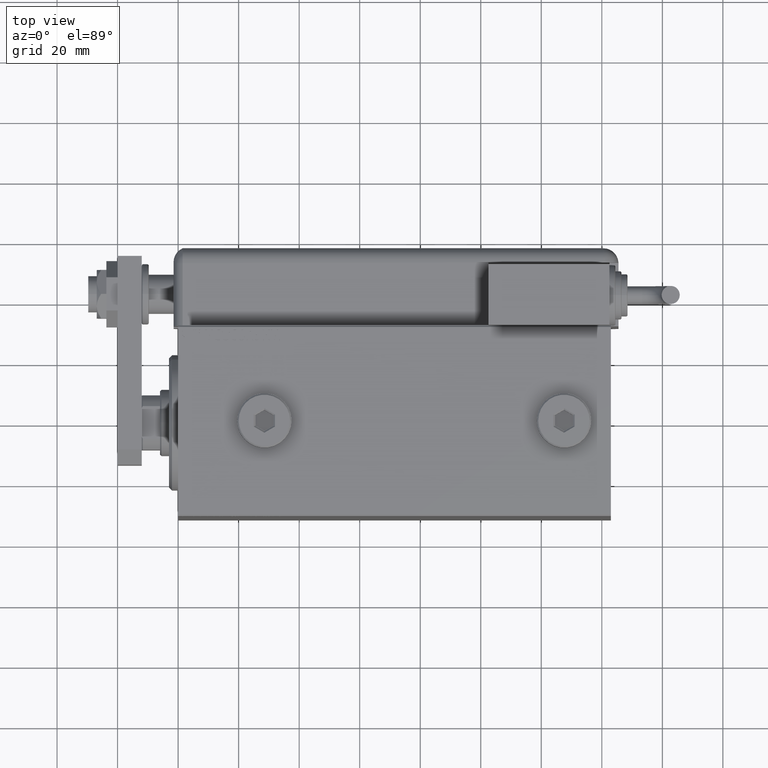
[diagram: clean part render]
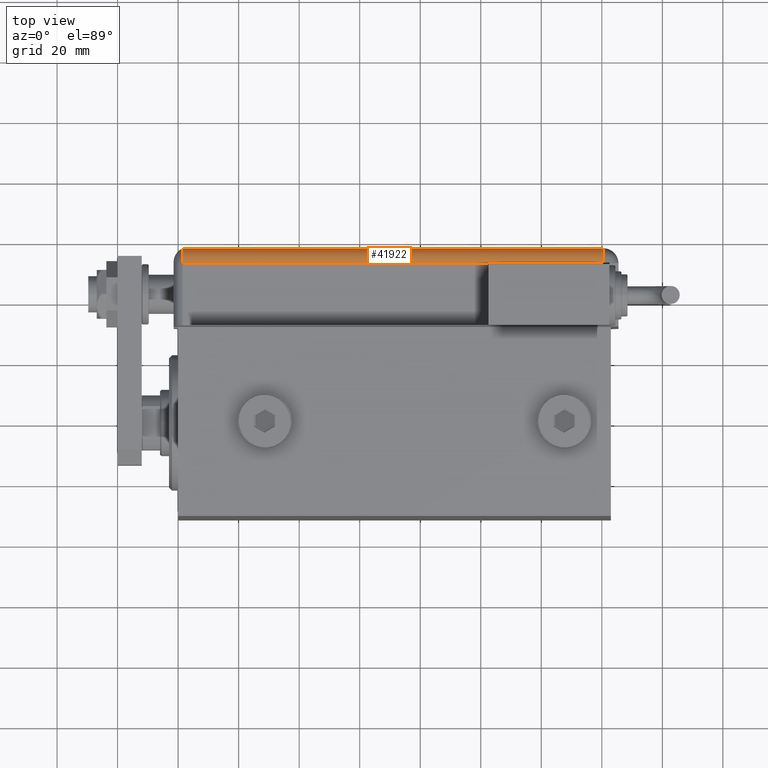
[diagram: same view with one face highlighted and labeled with its STEP entity id]
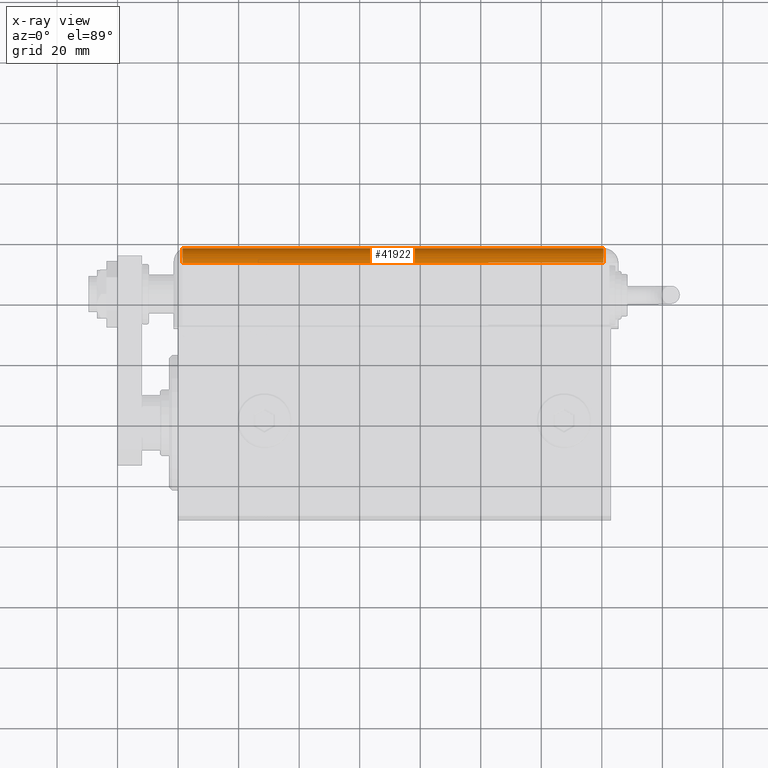
[diagram: x-ray of the same camera — body ghosted, the highlighted face saturated]
A machine part, top view. The second image highlights one B-rep face of the part: STEP entity #41922.
The next image is the same camera in x-ray: the body ghosted, the highlighted face saturated — about 0% of this face is hidden behind the body in this view.
In plain terms, the highlighted cylindrical surface (edge-blend (fillet) strip) has radius 5 mm, axis along (1, -0, -0).
Its self-contained STEP definition (entity closure, byte-faithful):
#1363 = EDGE_CURVE ( 'NONE', #40744, #38331, #10606, .T. ) ;
#1426 = CARTESIAN_POINT ( 'NONE',  ( 28.99599839871871154, 20.99999999999999289, 43.00000000000000000 ) ) ;
#1597 = ORIENTED_EDGE ( 'NONE', *, *, #43587, .F. ) ;
#2779 = AXIS2_PLACEMENT_3D ( 'NONE', #20456, #53145, #24176 ) ;
#3543 = LINE ( 'NONE', #31918, #47326 ) ;
#3907 = CARTESIAN_POINT ( 'NONE',  ( 23.99999999999999289, 25.79999999999998295, 144.0000000000000000 ) ) ;
#6172 = CARTESIAN_POINT ( 'NONE',  ( 23.99999999999999289, 20.79999999999998295, 144.0000000000000000 ) ) ;
#6709 = CARTESIAN_POINT ( 'NONE',  ( 28.99599839871871154, 21.00000000000000000, 5.000000000000004441 ) ) ;
#7061 = VERTEX_POINT ( 'NONE', #24413 ) ;
#10018 = DIRECTION ( 'NONE',  ( -1.000000000000000000, 0.000000000000000000, 0.000000000000000000 ) ) ;
#10606 = LINE ( 'NONE', #42089, #13893 ) ;
#12548 = EDGE_CURVE ( 'NONE', #24295, #15244, #21476, .T. ) ;
#13893 = VECTOR ( 'NONE', #60894, 1000.000000000000000 ) ;
#15244 = VERTEX_POINT ( 'NONE', #1426 ) ;
#16395 = CARTESIAN_POINT ( 'NONE',  ( 28.99999999999999645, 20.79999999999998295, 144.0000000000000000 ) ) ;
#16582 = DIRECTION ( 'NONE',  ( -0.000000000000000000, 0.000000000000000000, -1.000000000000000000 ) ) ;
#16848 = DIRECTION ( 'NONE',  ( -0.000000000000000000, -0.000000000000000000, 1.000000000000000000 ) ) ;
#18314 = ORIENTED_EDGE ( 'NONE', *, *, #56936, .T. ) ;
#19275 = CARTESIAN_POINT ( 'NONE',  ( 23.99999999999999289, 20.79999999999998295, 5.000000000000004441 ) ) ;
#20424 = CIRCLE ( 'NONE', #43067, 5.000000000000000888 ) ;
#20456 = CARTESIAN_POINT ( 'NONE',  ( 23.99999999999999289, 20.79999999999998295, 144.0000000000000000 ) ) ;
#21246 = CIRCLE ( 'NONE', #55712, 5.000000000000000888 ) ;
#21405 = VERTEX_POINT ( 'NONE', #3907 ) ;
#21476 = LINE ( 'NONE', #59091, #24021 ) ;
#22097 = DIRECTION ( 'NONE',  ( 1.000000000000000000, -6.383782391594648845E-14, 0.000000000000000000 ) ) ;
#22490 = CIRCLE ( 'NONE', #2779, 5.000000000000000888 ) ;
#24021 = VECTOR ( 'NONE', #16848, 1000.000000000000000 ) ;
#24176 = DIRECTION ( 'NONE',  ( -1.000000000000000000, 0.000000000000000000, 0.000000000000000000 ) ) ;
#24295 = VERTEX_POINT ( 'NONE', #6709 ) ;
#24364 = ORIENTED_EDGE ( 'NONE', *, *, #1363, .F. ) ;
#24413 = CARTESIAN_POINT ( 'NONE',  ( 23.99999999999999289, 25.79999999999998295, 5.000000000000004441 ) ) ;
#24664 = CYLINDRICAL_SURFACE ( 'NONE', #41328, 5.000000000000000888 ) ;
#25507 = ORIENTED_EDGE ( 'NONE', *, *, #34452, .F. ) ;
#31918 = CARTESIAN_POINT ( 'NONE',  ( 23.99999999999999289, 25.79999999999998295, 144.0000000000000000 ) ) ;
#32734 = EDGE_CURVE ( 'NONE', #15244, #40744, #20424, .T. ) ;
#34452 = EDGE_CURVE ( 'NONE', #38331, #21405, #22490, .T. ) ;
#38331 = VERTEX_POINT ( 'NONE', #16395 ) ;
#40744 = VERTEX_POINT ( 'NONE', #56941 ) ;
#41328 = AXIS2_PLACEMENT_3D ( 'NONE', #6172, #47819, #57982 ) ;
#41922 = ADVANCED_FACE ( 'NONE', ( #57382 ), #24664, .T. ) ;
#42089 = CARTESIAN_POINT ( 'NONE',  ( 28.99999999999999645, 20.79999999999998295, 144.0000000000000000 ) ) ;
#43067 = AXIS2_PLACEMENT_3D ( 'NONE', #48949, #16582, #22097 ) ;
#43587 = EDGE_CURVE ( 'NONE', #21405, #7061, #3543, .T. ) ;
#47326 = VECTOR ( 'NONE', #50708, 1000.000000000000000 ) ;
#47819 = DIRECTION ( 'NONE',  ( 0.000000000000000000, 0.000000000000000000, -1.000000000000000000 ) ) ;
#48949 = CARTESIAN_POINT ( 'NONE',  ( 23.99999999999999289, 20.79999999999998295, 43.00000000000000000 ) ) ;
#49470 = EDGE_LOOP ( 'NONE', ( #59249, #57972, #18314, #1597, #25507, #24364 ) ) ;
#50708 = DIRECTION ( 'NONE',  ( 0.000000000000000000, 0.000000000000000000, -1.000000000000000000 ) ) ;
#52860 = DIRECTION ( 'NONE',  ( -0.000000000000000000, -0.000000000000000000, 1.000000000000000000 ) ) ;
#53145 = DIRECTION ( 'NONE',  ( -0.000000000000000000, -0.000000000000000000, 1.000000000000000000 ) ) ;
#55712 = AXIS2_PLACEMENT_3D ( 'NONE', #19275, #52860, #10018 ) ;
#56936 = EDGE_CURVE ( 'NONE', #24295, #7061, #21246, .T. ) ;
#56941 = CARTESIAN_POINT ( 'NONE',  ( 28.99999999999999645, 20.79999999999998295, 43.00000000000000000 ) ) ;
#57382 = FACE_OUTER_BOUND ( 'NONE', #49470, .T. ) ;
#57972 = ORIENTED_EDGE ( 'NONE', *, *, #12548, .F. ) ;
#57982 = DIRECTION ( 'NONE',  ( -1.000000000000000000, 0.000000000000000000, 0.000000000000000000 ) ) ;
#59091 = CARTESIAN_POINT ( 'NONE',  ( 28.99599839871871154, 20.99999999999997868, 144.0000000000000000 ) ) ;
#59249 = ORIENTED_EDGE ( 'NONE', *, *, #32734, .F. ) ;
#60894 = DIRECTION ( 'NONE',  ( -0.000000000000000000, -0.000000000000000000, 1.000000000000000000 ) ) ;